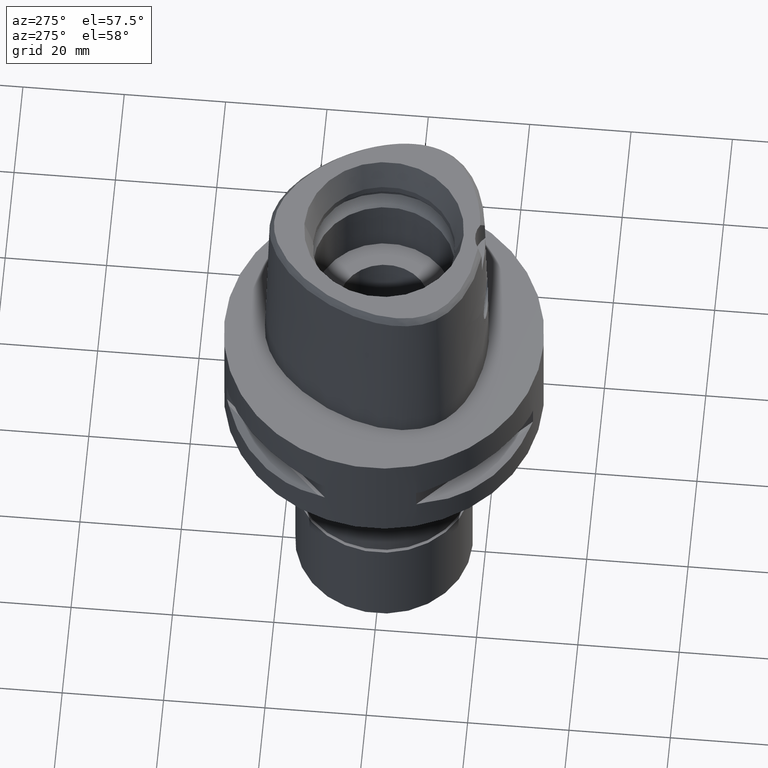
[diagram: clean part render]
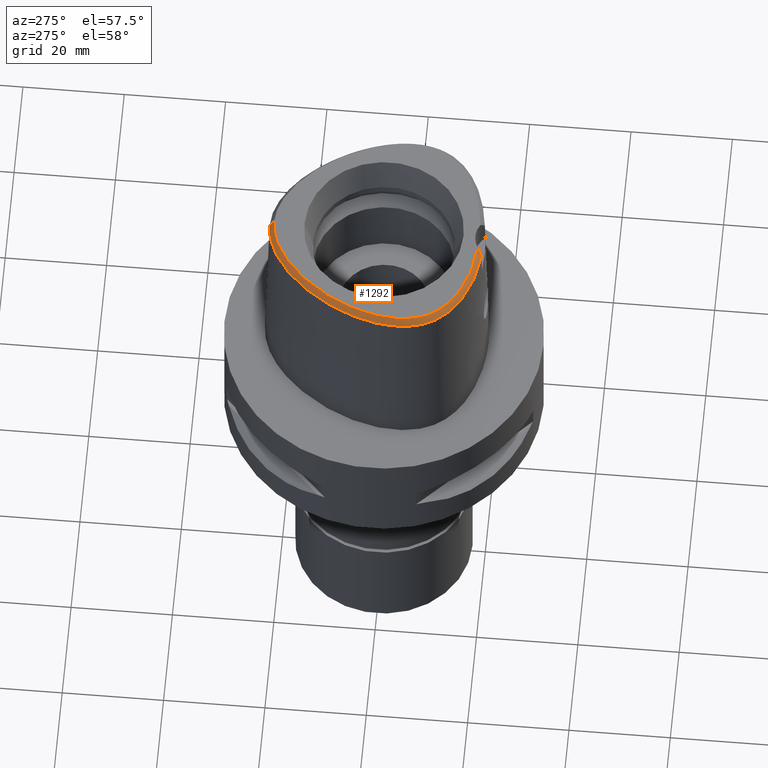
[diagram: same view with one face highlighted and labeled with its STEP entity id]
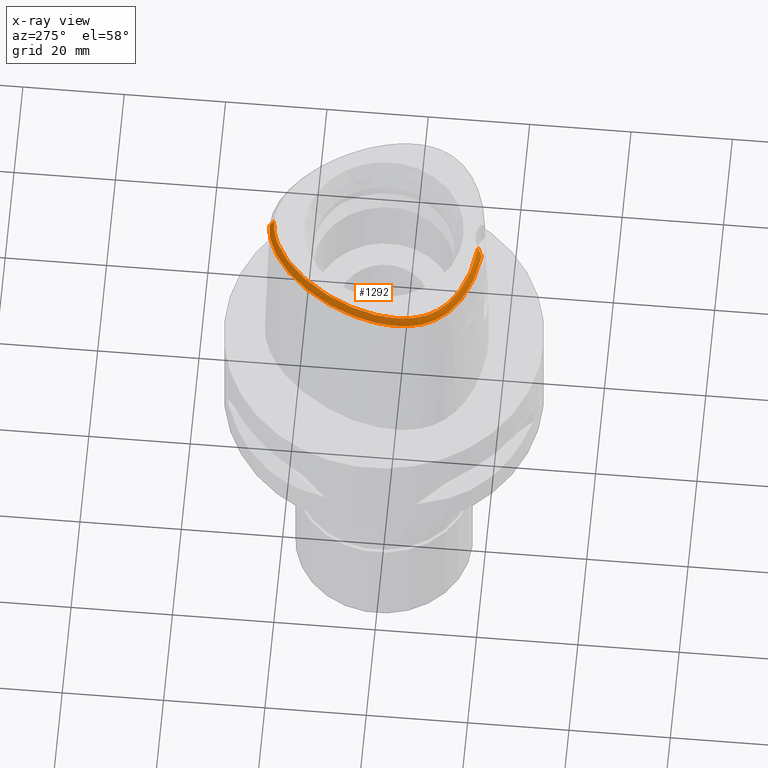
[diagram: x-ray of the same camera — body ghosted, the highlighted face saturated]
A machine part, auxiliary view. The second image highlights one B-rep face of the part: STEP entity #1292.
The next image is the same camera in x-ray: the body ghosted, the highlighted face saturated — about 0% of this face is hidden behind the body in this view.
In plain terms, the highlighted face is a freeform B-spline surface patch.
Its self-contained STEP definition (entity closure, byte-faithful):
#9 = CARTESIAN_POINT ( 'NONE',  ( -17.12168326043000022, -13.41299945634999879, 37.55531979366000428 ) ) ;
#35 = CARTESIAN_POINT ( 'NONE',  ( -17.36705065809000104, -13.66070393918000114, 36.96649716092999682 ) ) ;
#41 = CARTESIAN_POINT ( 'NONE',  ( 0.6285066589171000029, 22.28202648483999937, 36.96649691178999575 ) ) ;
#57 = CARTESIAN_POINT ( 'NONE',  ( -9.104167737895000556, -18.23657740963999885, 36.96649986384999664 ) ) ;
#65 = CARTESIAN_POINT ( 'NONE',  ( -2.001249429949000014, 21.41892593386999977, 38.14414241975999431 ) ) ;
#72 = CARTESIAN_POINT ( 'NONE',  ( -15.71788912669472360, -14.29843101566251917, 37.99999999999823075 ) ) ;
#83 = CARTESIAN_POINT ( 'NONE',  ( -16.76456539924999944, -14.22401579277000039, 36.96649709620000124 ) ) ;
#105 = CARTESIAN_POINT ( 'NONE',  ( -7.826704937448998756, -18.94325677890000037, 36.37767756388999629 ) ) ;
#111 = CARTESIAN_POINT ( 'NONE',  ( -0.7100927885175000176, 22.63257528171000033, 36.37767437893000277 ) ) ;
#135 = CARTESIAN_POINT ( 'NONE',  ( -0.6498990081534760099, 21.67378274708464403, 37.99999999999899103 ) ) ;
#138 = CARTESIAN_POINT ( 'NONE',  ( -4.348308996616999877, 21.11264479553999962, 37.55531981098000216 ) ) ;
#162 = CARTESIAN_POINT ( 'NONE',  ( -12.37759636067999836, 14.83436080763999954, 38.14414234139000826 ) ) ;
#171 = CARTESIAN_POINT ( 'NONE',  ( -4.467522189395300991, -19.48130287051044718, 36.52186244848012109 ) ) ;
#183 = CARTESIAN_POINT ( 'NONE',  ( -16.32393967392999912, 10.04394117300000033, 37.55531982341000230 ) ) ;
#204 = CARTESIAN_POINT ( 'NONE',  ( -17.73295717902000135, 8.971550314017999739, 36.37767500210999572 ) ) ;
#223 = CARTESIAN_POINT ( 'NONE',  ( -18.24302769441958816, 5.671232572958190943, 37.99999999999809575 ) ) ;
#230 = CARTESIAN_POINT ( 'NONE',  ( -15.17585722513999968, 11.20994039125999997, 38.14414232997000198 ) ) ;
#248 = CARTESIAN_POINT ( 'NONE',  ( -20.38301517462688039, -3.278344853327561648, 38.00000000000441247 ) ) ;
#254 = CARTESIAN_POINT ( 'NONE',  ( -17.52723911976999815, 7.062060699552000109, 38.14414232741000177 ) ) ;
#264 = VECTOR ( 'NONE', #865, 1000.000000000000227 ) ;
#278 = CARTESIAN_POINT ( 'NONE',  ( -21.09615816774999786, -7.195222913562999700, 36.37767443528999678 ) ) ;
#301 = CARTESIAN_POINT ( 'NONE',  ( -1.323674540694366408, 21.61098849315788684, 37.99999999999803890 ) ) ;
#307 = CARTESIAN_POINT ( 'NONE',  ( -20.19426589185999887, -6.171597163288000232, 38.14414237791999795 ) ) ;
#335 = CARTESIAN_POINT ( 'NONE',  ( -19.12867740745999967, 6.042761177815999751, 36.37767494752999653 ) ) ;
#347 = CARTESIAN_POINT ( 'NONE',  ( -7.599370508970923588, -18.01010694911817112, 38.00000000000024869 ) ) ;
#356 = B_SPLINE_CURVE_WITH_KNOTS ( 'NONE', 3,
 ( #4326, #4735, #4301, #3579 ),
 .UNSPECIFIED., .F., .F.,
 ( 4, 4 ),
 ( 0.0000000000000000000, 1.000000000000000000 ),
 .UNSPECIFIED. ) ;
#361 = CARTESIAN_POINT ( 'NONE',  ( -18.15657829243999899, 7.362013155635000139, 36.96649787063000048 ) ) ;
#385 = CARTESIAN_POINT ( 'NONE',  ( -14.53030921668000097, -15.86658569306000111, 36.96649752983000070 ) ) ;
#389 = ORIENTED_EDGE ( 'NONE', *, *, #2912, .F. ) ;
#391 = CARTESIAN_POINT ( 'NONE',  ( 0.4011141224545000106, 21.94492353493000181, 37.55531981677999909 ) ) ;
#393 = CARTESIAN_POINT ( 'NONE',  ( -2.127561604687999708, -19.78203156840999810, 36.37767550692999663 ) ) ;
#408 = CARTESIAN_POINT ( 'NONE',  ( -11.41806047328999973, -17.05144609908999698, 37.55531974900999614 ) ) ;
#431 = CARTESIAN_POINT ( 'NONE',  ( -19.52639223870999885, -9.976960348653999944, 37.55531986887999807 ) ) ;
#437 = CARTESIAN_POINT ( 'NONE',  ( -1.313063766213999894, 21.52629636675000313, 38.14414247019999493 ) ) ;
#444 = CARTESIAN_POINT ( 'NONE',  ( -13.33457781970489364, -15.85148397417497002, 37.99999999999999289 ) ) ;
#456 = CARTESIAN_POINT ( 'NONE',  ( -18.60309760926000067, -10.99135794304999969, 38.14414240117000077 ) ) ;
#462 = CARTESIAN_POINT ( 'NONE',  ( -2.799883994968999978, 21.60095730881999998, 37.55531997757999818 ) ) ;
#474 = CARTESIAN_POINT ( 'NONE',  ( -3.637738201363999835, -19.56971413236999879, 36.52186244848000030 ) ) ;
#482 = CARTESIAN_POINT ( 'NONE',  ( -7.579172012002000081, -17.92719727224000081, 38.14414215668000452 ) ) ;
#487 = CARTESIAN_POINT ( 'NONE',  ( 0.6478332438977999486, 22.62992612304000062, 36.37767413712000319 ) ) ;
#504 = CARTESIAN_POINT ( 'NONE',  ( -19.54919922642262264, -9.228169790568095721, 38.00000000000391509 ) ) ;
#506 = CARTESIAN_POINT ( 'NONE',  ( -13.15667980733999975, 15.53197356767000059, 36.37767548497999570 ) ) ;
#517 = CARTESIAN_POINT ( 'NONE',  ( -10.15538788053072494, 18.47129535094165220, 36.52186244848012109 ) ) ;
#530 = CARTESIAN_POINT ( 'NONE',  ( -10.43197531335999884, 16.80339904030999776, 38.14414206486999603 ) ) ;
#543 = EDGE_CURVE ( 'NONE', #1420, #4438, #356, .T. ) ;
#558 = CARTESIAN_POINT ( 'NONE',  ( -5.023312973316000019, 20.45657428193000271, 38.14414237455999768 ) ) ;
#577 = CARTESIAN_POINT ( 'NONE',  ( -17.11849911540000235, 8.642188748247999541, 37.55531992357000348 ) ) ;
#601 = CARTESIAN_POINT ( 'NONE',  ( -5.165910260893999961, 20.77471781885000013, 37.55531995359000064 ) ) ;
#620 = CARTESIAN_POINT ( 'NONE',  ( -17.45119705493901563, -12.68365517585368885, 38.00000000000212452 ) ) ;
#627 = CARTESIAN_POINT ( 'NONE',  ( -20.29776014918000016, -3.282181280219000463, 38.14414242144999889 ) ) ;
#643 = CARTESIAN_POINT ( 'NONE',  ( -19.98419490691645350, -7.809898894995782825, 38.00000000000395062 ) ) ;
#647 = CARTESIAN_POINT ( 'NONE',  ( -20.54140319290000249, 0.3465717870460999772, 36.96649943636999325 ) ) ;
#667 = CARTESIAN_POINT ( 'NONE',  ( -19.26324493738313848, 2.868570891456585947, 38.00000000000154898 ) ) ;
#674 = CARTESIAN_POINT ( 'NONE',  ( -20.36772299776000139, -8.722504308652998972, 36.96649720203999578 ) ) ;
#705 = CARTESIAN_POINT ( 'NONE',  ( -19.46926117583999627, -9.198251200868000410, 38.14414237790000328 ) ) ;
#717 = CARTESIAN_POINT ( 'NONE',  ( -4.706994425064742416, -18.56721852572422193, 38.00000000000304112 ) ) ;
#730 = CARTESIAN_POINT ( 'NONE',  ( -19.69895886608000168, 4.584875048484000182, 36.37767400741000046 ) ) ;
#753 = CARTESIAN_POINT ( 'NONE',  ( -13.79185788200999951, -16.69617459229000289, 36.37767455328999233 ) ) ;
#761 = CARTESIAN_POINT ( 'NONE',  ( -4.793576134601000405, -19.17289969507999814, 36.96649723816000233 ) ) ;
#778 = CARTESIAN_POINT ( 'NONE',  ( -12.63344369875999895, -16.89394803805000222, 36.96649710122000698 ) ) ;
#800 = CARTESIAN_POINT ( 'NONE',  ( -19.10630146425999598, -12.13623546095000094, 36.37767433284000163 ) ) ;
#806 = CARTESIAN_POINT ( 'NONE',  ( -0.02689001808832000226, 22.30527778583000043, 36.96649742347999990 ) ) ;
#826 = CARTESIAN_POINT ( 'NONE',  ( -18.66356249272000056, -12.73367752108999973, 36.37767522154000233 ) ) ;
#850 = CARTESIAN_POINT ( 'NONE',  ( -18.39007717719000112, -12.51739712536000226, 36.96649760262999962 ) ) ;
#865 = DIRECTION ( 'NONE',  ( -1.159487924807015001E-11, -0.5092834681090075977, 0.8605988316927122295 ) ) ;
#881 = CARTESIAN_POINT ( 'NONE',  ( -7.993852759320000168, 19.60417434497999878, 36.96649724446999130 ) ) ;
#891 = CARTESIAN_POINT ( 'NONE',  ( -19.88562090098071522, 4.345879983792017676, 36.52186244848012109 ) ) ;
#902 = CARTESIAN_POINT ( 'NONE',  ( -2.017025177696809113, 21.50280829368117352, 37.99999999999862155 ) ) ;
#904 = CARTESIAN_POINT ( 'NONE',  ( -7.247140764226999821, 20.48205174355999958, 36.37767462256000073 ) ) ;
#925 = CARTESIAN_POINT ( 'NONE',  ( -10.13646839841000080, 18.44572700129999632, 36.37767613956999924 ) ) ;
#948 = CARTESIAN_POINT ( 'NONE',  ( -11.65292860978999911, 16.11242325443000212, 37.55532085549000243 ) ) ;
#965 = CARTESIAN_POINT ( 'NONE',  ( -3.665169263124999688, 21.71869039598999862, 36.96649750639999610 ) ) ;
#990 = CARTESIAN_POINT ( 'NONE',  ( -20.19983938909999921, 0.2768833584918999891, 37.55532077270999736 ) ) ;
#998 = ORIENTED_EDGE ( 'NONE', *, *, #2477, .T. ) ;
#1010 = CARTESIAN_POINT ( 'NONE',  ( -19.94188961899586232, 0.2242544969876929806, 38.00000000000542855 ) ) ;
#1017 = CARTESIAN_POINT ( 'NONE',  ( -21.34256194262000150, -3.235165803118000394, 36.37767458395999398 ) ) ;
#1035 = CARTESIAN_POINT ( 'NONE',  ( -9.524337278001434370, 17.70558492631743519, 37.99999999999981526 ) ) ;
#1039 = CARTESIAN_POINT ( 'NONE',  ( -20.62672423625999940, -5.295503090209000341, 37.55532008928000209 ) ) ;
#1047 = CARTESIAN_POINT ( 'NONE',  ( -4.744247513305999142, -18.82782199693000180, 37.55531982690000348 ) ) ;
#1058 = CARTESIAN_POINT ( 'NONE',  ( -14.34402387966132508, 12.54761970512795166, 37.99999999999757705 ) ) ;
#1063 = CARTESIAN_POINT ( 'NONE',  ( -20.12235595958999923, -9.442686419491998606, 36.96649750870000162 ) ) ;
#1072 = CARTESIAN_POINT ( 'NONE',  ( -2.063370860241000138, -18.73864785536000355, 38.14414233944000188 ) ) ;
#1093 = CARTESIAN_POINT ( 'NONE',  ( -20.91780201012000262, -8.036095849080000519, 36.37767449006999954 ) ) ;
#1103 = CARTESIAN_POINT ( 'NONE',  ( -2.631937853039000075, -18.70029309016999974, 38.14414233019000733 ) ) ;
#1112 = ORIENTED_EDGE ( 'NONE', *, *, #3185, .F. ) ;
#1115 = CARTESIAN_POINT ( 'NONE',  ( -15.88005625124000098, -14.50586071487999895, 37.55531985699000330 ) ) ;
#1122 = CARTESIAN_POINT ( 'NONE',  ( -2.267967529513000180, -18.72605724224999690, 38.14414233474000326 ) ) ;
#1139 = CARTESIAN_POINT ( 'NONE',  ( -14.71279143475000062, -16.16364244389999882, 36.37767510726999376 ) ) ;
#1166 = CARTESIAN_POINT ( 'NONE',  ( -11.55067612095000129, -17.37384516099000109, 36.96649705715000067 ) ) ;
#1172 = CARTESIAN_POINT ( 'NONE',  ( -0.02537381127507000109, 21.60796399214999752, 38.14414238978000782 ) ) ;
#1192 = CARTESIAN_POINT ( 'NONE',  ( -16.09478960761000010, -14.78052844207000049, 36.96649730809999568 ) ) ;
#1197 = CARTESIAN_POINT ( 'NONE',  ( -2.194581488130000313, 22.44690568651000007, 36.37767460290000088 ) ) ;
#1207 = CARTESIAN_POINT ( 'NONE',  ( -21.14970188363574621, -6.717195958888013685, 36.52186244848012109 ) ) ;
#1213 = CARTESIAN_POINT ( 'NONE',  ( -20.16324191052000003, -10.26106408566999839, 36.37767480263000408 ) ) ;
#1240 = CARTESIAN_POINT ( 'NONE',  ( -6.174767804685999728, 20.67582251198999899, 36.96649762095000114 ) ) ;
#1265 = CARTESIAN_POINT ( 'NONE',  ( -15.24692477332568252, 11.25717358966043058, 38.00000000000530065 ) ) ;
#1267 = CARTESIAN_POINT ( 'NONE',  ( -13.33810351842999964, 13.70890362495999959, 38.14414246353999971 ) ) ;
#1287 = CARTESIAN_POINT ( 'NONE',  ( -9.151232397083999714, 19.21741493213999874, 36.37767409449999434 ) ) ;
#1292 = ADVANCED_FACE ( 'NONE', ( #2263 ), #1732, .F. ) ;
#1309 = CARTESIAN_POINT ( 'NONE',  ( -13.87939037361999972, 14.14828851248000063, 36.96649689462000055 ) ) ;
#1332 = CARTESIAN_POINT ( 'NONE',  ( -14.27527682814000087, 12.49706793529999871, 38.14414235490000493 ) ) ;
#1350 = CARTESIAN_POINT ( 'NONE',  ( -20.91392909690999957, -2.117451904786999961, 36.96649693957999716 ) ) ;
#1368 = CARTESIAN_POINT ( 'NONE',  ( -3.481017203588621101, 21.13509756881591528, 37.99999999999548805 ) ) ;
#1376 = CARTESIAN_POINT ( 'NONE',  ( -20.18061465521000031, 3.152958034858999614, 36.37767668140999433 ) ) ;
#1399 = CARTESIAN_POINT ( 'NONE',  ( -19.64434054692845777, 1.520253387635396969, 37.99999999999978684 ) ) ;
#1406 = CARTESIAN_POINT ( 'NONE',  ( -20.24009707112999834, -7.871899590887999842, 37.55531978321999986 ) ) ;
#1420 = VERTEX_POINT ( 'NONE', #3695 ) ;
#1421 = CARTESIAN_POINT ( 'NONE',  ( -20.15090095364999101, -7.024227649787240679, 38.00000000000529354 ) ) ;
#1425 = CARTESIAN_POINT ( 'NONE',  ( -19.89932763247000125, 1.585731761839000109, 37.55532097821000548 ) ) ;
#1453 = CARTESIAN_POINT ( 'NONE',  ( -20.22005478263999834, -2.185736901317000047, 38.14414245727999742 ) ) ;
#1481 = CARTESIAN_POINT ( 'NONE',  ( -14.95430012278999854, -14.75606250220999982, 38.14414233305000579 ) ) ;
#1503 = CARTESIAN_POINT ( 'NONE',  ( -17.61241805573999741, -13.90840842200000083, 36.37767452819999647 ) ) ;
#1529 = CARTESIAN_POINT ( 'NONE',  ( -14.16534478053999990, -15.27247219138999945, 38.14414237495000037 ) ) ;
#1535 = CARTESIAN_POINT ( 'NONE',  ( 0.4140611551187000083, 22.29319307367999770, 36.96649721464999772 ) ) ;
#1544 = CARTESIAN_POINT ( 'NONE',  ( -3.522896839654035439, -18.70811514173308154, 38.00000000000004974 ) ) ;
#1558 = CARTESIAN_POINT ( 'NONE',  ( -15.55057784370999840, -15.61535254804999973, 36.37767557885000258 ) ) ;
#1565 = CARTESIAN_POINT ( 'NONE',  ( -2.065693449341999610, 21.76158585141000046, 37.55531981413999887 ) ) ;
#1575 = CARTESIAN_POINT ( 'NONE',  ( -4.757642277158684152, 21.67478330407032772, 36.52186244848012109 ) ) ;
#1580 = CARTESIAN_POINT ( 'NONE',  ( -19.19941716501999807, -11.35291427954999932, 36.96649734181999492 ) ) ;
#1589 = LINE ( 'NONE', #4601, #264 ) ;
#1593 = CARTESIAN_POINT ( 'NONE',  ( -17.90324032096779661, -13.53935111955217963, 36.52186244848012109 ) ) ;
#1602 = CARTESIAN_POINT ( 'NONE',  ( -6.172244357410999527, -18.23451135869999717, 38.14414243403999905 ) ) ;
#1609 = CARTESIAN_POINT ( 'NONE',  ( -1.399753914574999758, 22.21823200414999988, 36.96649684686000370 ) ) ;
#1630 = CARTESIAN_POINT ( 'NONE',  ( -6.759433772717078348, 19.65454812512811955, 37.99999999999645439 ) ) ;
#1632 = CARTESIAN_POINT ( 'NONE',  ( -14.83694102210999866, 12.91007647059000085, 36.96649767355000193 ) ) ;
#1656 = CARTESIAN_POINT ( 'NONE',  ( -5.308507548472999993, 21.09286135576999754, 36.96649753263000093 ) ) ;
#1664 = CARTESIAN_POINT ( 'NONE',  ( -7.108589416785085824, 20.52412325828888839, 36.52186244848012109 ) ) ;
#1677 = CARTESIAN_POINT ( 'NONE',  ( -3.455333554077000269, 21.05370399836999695, 38.14414237821000597 ) ) ;
#1699 = CARTESIAN_POINT ( 'NONE',  ( -7.607994228924000346, 19.02344270759000366, 38.14414241473999567 ) ) ;
#1718 = CARTESIAN_POINT ( 'NONE',  ( -16.88647904405342359, 8.517821442302714985, 37.99999999999960210 ) ) ;
#1723 = CARTESIAN_POINT ( 'NONE',  ( -4.596586449374999717, 21.76424015926999544, 36.37767459137999992 ) ) ;
#1732 = B_SPLINE_SURFACE_WITH_KNOTS ( 'NONE', 3, 3, ( 
 ( #1913, #4206, #41, #487 ),
 ( #3765, #391, #1535, #3042 ),
 ( #1172, #3490, #806, #1982 ),
 ( #3839, #2312, #3815, #111 ),
 ( #437, #1936, #1609, #3444 ),
 ( #65, #1565, #4577, #1197 ),
 ( #2703, #462, #1959, #3471 ),
 ( #1677, #2816, #965, #3516 ),
 ( #3911, #138, #2462, #1723 ),
 ( #558, #601, #1656, #4277 ),
 ( #4618, #2793, #1240, #2005 ),
 ( #4254, #4667, #3160, #904 ),
 ( #1699, #2440, #881, #4715 ),
 ( #2769, #4647, #2413, #1287 ),
 ( #2752, #2383, #4302, #925 ),
 ( #530, #2060, #3181, #3607 ),
 ( #2035, #948, #3885, #4692 ),
 ( #162, #2085, #2104, #506 ),
 ( #1267, #3208, #1309, #2838 ),
 ( #1332, #3956, #1632, #4346 ),
 ( #230, #3938, #3539, #3558 ),
 ( #3979, #183, #4328, #3136 ),
 ( #2483, #577, #3580, #204 ),
 ( #254, #2858, #361, #3289 ),
 ( #2178, #3318, #4105, #335 ),
 ( #2210, #2916, #1829, #730 ),
 ( #4080, #3342, #4418, #1376 ),
 ( #2889, #1425, #4005, #4838 ),
 ( #4736, #990, #647, #2509 ),
 ( #4396, #2234, #3234, #3711 ),
 ( #1453, #4368, #1350, #2940 ),
 ( #627, #2965, #2130, #1017 ),
 ( #2533, #1774, #4474, #3632 ),
 ( #4787, #1039, #2556, #4031 ),
 ( #307, #3734, #3660, #2152 ),
 ( #1751, #4809, #4447, #278 ),
 ( #2611, #1406, #4056, #1093 ),
 ( #3261, #4760, #674, #3686 ),
 ( #705, #1806, #1063, #2582 ),
 ( #2630, #431, #4521, #1213 ),
 ( #3391, #1854, #3415, #2287 ),
 ( #456, #2356, #1580, #3758 ),
 ( #3861, #1906, #3366, #800 ),
 ( #2721, #3835, #850, #826 ),
 ( #1953, #4222, #2307, #2698 ),
 ( #3035, #9, #35, #1503 ),
 ( #4127, #3466, #83, #4865 ),
 ( #4149, #1115, #1192, #3011 ),
 ( #1481, #3081, #4588, #1558 ),
 ( #1529, #2989, #385, #1139 ),
 ( #4497, #4200, #2257, #753 ),
 ( #1883, #2653, #778, #3784 ),
 ( #4571, #408, #1166, #4547 ),
 ( #2679, #2332, #4179, #3807 ),
 ( #1931, #3438, #57, #3061 ),
 ( #482, #1976, #3486, #105 ),
 ( #1602, #3103, #2591, #1892 ),
 ( #3767, #1047, #761, #2662 ),
 ( #4063, #1785, #4159, #2217 ),
 ( #1103, #2242, #3020, #4135 ),
 ( #1122, #1836, #2265, #4530 ),
 ( #1072, #4875, #2637, #393 ) ),
 .UNSPECIFIED., .F., .F., .F.,
 ( 4, 1, 1, 1, 1, 1, 1, 1, 1, 1, 1, 1, 1, 1, 1, 1, 1, 1, 1, 1, 1, 1, 1, 1, 1, 1, 1, 1, 1, 1, 1, 1, 1, 1, 1, 1, 1, 1, 1, 1, 1, 1, 1, 1, 1, 1, 1, 1, 1, 1, 1, 1, 1, 1, 1, 1, 1, 1, 1, 4 ),
 ( 4, 4 ),
 ( -0.01585043674195000044, 0.0000000000000000000, 0.01776034072165999858, 0.03552068144391999638, 0.05328102216616999870, 0.07104136288842999303, 0.08880170361069000817, 0.1065620443330000111, 0.1243223850551999909, 0.1420827257775000019, 0.1598430664997000095, 0.1776034072219000171, 0.1953637479442000002, 0.2131240886664000078, 0.2308844293887999943, 0.2486447701109999742, 0.2664051108332999851, 0.2841654515554999927, 0.3019257922778000314, 0.3196861329999999835, 0.3374464737223000221, 0.3552068144444999742, 0.3729671551668000129, 0.3907274958890999961, 0.4084878366113000037, 0.4262481773335999868, 0.4440085180557999944, 0.4617688587780999776, 0.4795291995003000407, 0.4972895402225999684, 0.5150498809447999760, 0.5328102216671000146, 0.5505705623893999423, 0.5683309031115999499, 0.5860912438338999886, 0.6038515845561001072, 0.6216119252783999238, 0.6393722660005999314, 0.6571326067228999701, 0.6748929474452000088, 0.6926532881674000164, 0.7104136288896999440, 0.7281739696118999516, 0.7459343103341999903, 0.7636946510563999979, 0.7814549917787000366, 0.7992153325008999332, 0.8169756732231999719, 0.8347360139455000105, 0.8524963546678000492, 0.8702566953900000568, 0.8880170361122000644, 0.9057773768344999921, 0.9235377175566999997, 0.9412980582790000383, 0.9590583990012000459, 0.9768187397236000047, 0.9945790804457999013, 1.000000000000000000, 1.006922200500000031 ),
 ( -0.07453463533500999383, 1.074561999604999984 ),
 .UNSPECIFIED. ) ;
#1744 = CARTESIAN_POINT ( 'NONE',  ( -18.79649882724726240, 4.256255933890856546, 37.99999999999823075 ) ) ;
#1751 = CARTESIAN_POINT ( 'NONE',  ( -20.06691554457000137, -7.009034846215000059, 38.14414243465999732 ) ) ;
#1770 = CARTESIAN_POINT ( 'NONE',  ( -12.44116897271730160, 14.89128547409860381, 38.00000000000058265 ) ) ;
#1774 = CARTESIAN_POINT ( 'NONE',  ( -20.66387475710999766, -4.313874817204000678, 37.55531986402999678 ) ) ;
#1785 = CARTESIAN_POINT ( 'NONE',  ( -3.550572152811000137, -18.96985406917999839, 37.55532005999000233 ) ) ;
#1800 = CARTESIAN_POINT ( 'NONE',  ( -0.2181979014508467485, 21.68728795389507269, 37.99999999999897682 ) ) ;
#1806 = CARTESIAN_POINT ( 'NONE',  ( -19.79580856772000175, -9.320468810179999508, 37.55531994330000600 ) ) ;
#1829 = CARTESIAN_POINT ( 'NONE',  ( -19.37141121596999938, 4.465602821311000170, 36.96649682916000046 ) ) ;
#1836 = CARTESIAN_POINT ( 'NONE',  ( -2.291499210020000010, -19.07372046665999932, 37.55532007644000458 ) ) ;
#1854 = CARTESIAN_POINT ( 'NONE',  ( -19.22856478910999911, -10.59168861018000030, 37.55531973990999717 ) ) ;
#1883 = CARTESIAN_POINT ( 'NONE',  ( -12.33476910286000106, -16.26392943873999997, 38.14414243471999555 ) ) ;
#1892 = CARTESIAN_POINT ( 'NONE',  ( -6.369940319429000297, -19.26142080469000106, 36.37767444210999912 ) ) ;
#1906 = CARTESIAN_POINT ( 'NONE',  ( -18.53369790096999736, -11.73821204383999905, 37.55531974011999807 ) ) ;
#1913 = CARTESIAN_POINT ( 'NONE',  ( 0.5898534889557000005, 21.58622720843999687, 38.14414246114999685 ) ) ;
#1931 = CARTESIAN_POINT ( 'NONE',  ( -8.905818279922998570, -17.56819357658000058, 38.14414204943000186 ) ) ;
#1936 = CARTESIAN_POINT ( 'NONE',  ( -1.356408840395000093, 21.87226418544999973, 37.55531965852999576 ) ) ;
#1941 = CARTESIAN_POINT ( 'NONE',  ( -14.21001600787567654, -15.34519100086254539, 38.00000000000127187 ) ) ;
#1953 = CARTESIAN_POINT ( 'NONE',  ( -17.38759914151000174, -12.62673121937000076, 38.14414241344999823 ) ) ;
#1959 = CARTESIAN_POINT ( 'NONE',  ( -2.884875458599999831, 21.93910018776000115, 36.96649758835999933 ) ) ;
#1967 = CARTESIAN_POINT ( 'NONE',  ( -20.67704215115637822, -8.734985316449225934, 36.52186244848012109 ) ) ;
#1976 = CARTESIAN_POINT ( 'NONE',  ( -7.661682987150999935, -18.26588377446000067, 37.55532062574999941 ) ) ;
#1982 = CARTESIAN_POINT ( 'NONE',  ( -0.02764812149493999990, 22.65393468268000277, 36.37767494033000304 ) ) ;
#2005 = CARTESIAN_POINT ( 'NONE',  ( -6.334991103811000279, 20.98545549194999893, 36.37767525030999849 ) ) ;
#2035 = CARTESIAN_POINT ( 'NONE',  ( -11.40493232464999984, 15.86744273810999850, 38.14414208221000280 ) ) ;
#2047 = CARTESIAN_POINT ( 'NONE',  ( -19.55745547455789080, -11.29150218116565085, 36.52186244848012109 ) ) ;
#2060 = CARTESIAN_POINT ( 'NONE',  ( -10.66747145632000127, 17.06042552542999857, 37.55532090900000242 ) ) ;
#2085 = CARTESIAN_POINT ( 'NONE',  ( -12.63729084290000060, 15.06689839430999989, 37.55532005591999933 ) ) ;
#2104 = CARTESIAN_POINT ( 'NONE',  ( -12.89698532511999929, 15.29943598098999935, 36.96649777045000462 ) ) ;
#2126 = CARTESIAN_POINT ( 'NONE',  ( -18.99520880204390849, -10.46968343926009837, 38.00000000000499512 ) ) ;
#2130 = CARTESIAN_POINT ( 'NONE',  ( -20.99429467813999750, -3.250837628818000091, 36.96649719644999976 ) ) ;
#2135 = B_SPLINE_CURVE_WITH_KNOTS ( 'NONE', 3,
 ( #4096, #3430, #1544, #717, #3027, #347, #3050, #2224, #3455, #2319, #444, #1941, #3824, #72, #3282, #4805, #620, #2851, #3597, #4361, #2126, #3627, #504, #4389, #643, #1421, #2549, #4439, #4414, #248, #4049, #2934, #1010, #1399, #667, #1744, #223, #3256, #1718, #3652, #1265, #1058, #2172, #1770, #4781, #2528, #1035, #2574, #3228, #1630, #4026, #2148, #3680, #1368, #4645, #902, #301, #135, #1800, #2911 ),
 .UNSPECIFIED., .F., .F.,
 ( 4, 1, 1, 1, 1, 1, 1, 1, 1, 1, 1, 1, 1, 1, 1, 1, 1, 1, 1, 1, 1, 1, 1, 1, 1, 1, 1, 1, 1, 1, 1, 1, 1, 1, 1, 1, 1, 1, 1, 1, 1, 1, 1, 1, 1, 1, 1, 1, 1, 1, 1, 1, 1, 1, 1, 1, 1, 4 ),
 ( 0.0000000000000000000, 0.005420919554200098744, 0.02318126027639999531, 0.04094160099879995407, 0.05870194172099996166, 0.07646228244330000035, 0.09422262316550000794, 0.1119829638877999356, 0.1297433046099999432, 0.1475036453321999508, 0.1652639860544999895, 0.1830243267768000281, 0.2007846674991000668, 0.2185450082212999634, 0.2363053489436000021, 0.2540656896658000097, 0.2718260303881000484, 0.2895863711103000560, 0.3073467118325999836, 0.3251070525547999912, 0.3428673932771000299, 0.3606277339994000686, 0.3783880747216000762, 0.3961484154438998928, 0.4139087561661000114, 0.4316690968884000501, 0.4494294376106000577, 0.4671897783328999854, 0.4849501190552000240, 0.5027104597774000316, 0.5204708004996999593, 0.5382311412219000779, 0.5559914819442000056, 0.5737518226664000132, 0.5915121633886999408, 0.6092725041108999484, 0.6270328448331999871, 0.6447931855555000258, 0.6625535262777000334, 0.6803138669999999610, 0.6980742077221999686, 0.7158345484445000073, 0.7335948891667000149, 0.7513552298890000536, 0.7691155706112000612, 0.7868759113336000199, 0.8046362520558000275, 0.8223965927780999552, 0.8401569335002999628, 0.8579172742224999704, 0.8756776149448000091, 0.8934379556670000166, 0.9111982963893099363, 0.9289586371115700070, 0.9467189778338299666, 0.9644793185560800453, 0.9822396592783400049, 1.000000000000000000 ),
 .UNSPECIFIED. ) ;
#2148 = CARTESIAN_POINT ( 'NONE',  ( -5.058220461389208111, 20.53445508814465370, 38.00000000000069633 ) ) ;
#2152 = CARTESIAN_POINT ( 'NONE',  ( -21.23251000139000055, -6.298123142350000592, 36.37767507380999632 ) ) ;
#2172 = CARTESIAN_POINT ( 'NONE',  ( -13.40435640711516641, 13.76268382997355744, 37.99999999999898392 ) ) ;
#2178 = CARTESIAN_POINT ( 'NONE',  ( -18.16433836802000101, 5.638222529344000478, 38.14414238914000066 ) ) ;
#2210 = CARTESIAN_POINT ( 'NONE',  ( -18.71631591575000186, 4.227058366965000147, 38.14414247266999780 ) ) ;
#2217 = CARTESIAN_POINT ( 'NONE',  ( -3.623864602183999750, -19.66301649085999870, 36.37767549981999338 ) ) ;
#2224 = CARTESIAN_POINT ( 'NONE',  ( -10.17136073855295564, -17.24644253470227895, 38.00000000000071054 ) ) ;
#2228 = CARTESIAN_POINT ( 'NONE',  ( -1.479169189994000259E-11, 22.56201468012000078, 36.52186680743999858 ) ) ;
#2234 = CARTESIAN_POINT ( 'NONE',  ( -20.42043272041999913, -0.9702937578783999983, 37.55531995756000185 ) ) ;
#2242 = CARTESIAN_POINT ( 'NONE',  ( -2.659279472648000020, -19.04768675493999908, 37.55532009047000486 ) ) ;
#2257 = CARTESIAN_POINT ( 'NONE',  ( -13.62588819536999907, -16.38959433928000209, 36.96649717692000081 ) ) ;
#2263 = FACE_OUTER_BOUND ( 'NONE', #4783, .T. ) ;
#2265 = CARTESIAN_POINT ( 'NONE',  ( -2.315030890527999929, -19.42138369107000173, 36.96649781813999880 ) ) ;
#2287 = CARTESIAN_POINT ( 'NONE',  ( -19.84656075436999956, -10.91479454079000000, 36.37767433207000067 ) ) ;
#2307 = CARTESIAN_POINT ( 'NONE',  ( -17.90719481859999718, -13.09180059220000025, 36.96649725379999296 ) ) ;
#2312 = CARTESIAN_POINT ( 'NONE',  ( -0.6663981528253999365, 21.93658825037999804, 37.55531975274999468 ) ) ;
#2319 = CARTESIAN_POINT ( 'NONE',  ( -12.37132652997249416, -16.34104299087883660, 37.99999999999411671 ) ) ;
#2324 = CARTESIAN_POINT ( 'NONE',  ( -0.7901461696978708815, 22.56201478746404376, 36.52186244848012109 ) ) ;
#2332 = CARTESIAN_POINT ( 'NONE',  ( -10.25887531424999999, -17.49473641550000025, 37.55532052373000340 ) ) ;
#2356 = CARTESIAN_POINT ( 'NONE',  ( -18.90125738714000292, -11.17213611130000039, 37.55531987150000361 ) ) ;
#2383 = CARTESIAN_POINT ( 'NONE',  ( -9.692122717887999173, 17.90845823154000271, 37.55532023533999819 ) ) ;
#2394 = CARTESIAN_POINT ( 'NONE',  ( -16.39211280191700837, -14.95758113318893301, 36.52186244848012109 ) ) ;
#2413 = CARTESIAN_POINT ( 'NONE',  ( -8.943257880279999128, 18.93763603490999969, 36.96649688464999883 ) ) ;
#2424 = CARTESIAN_POINT ( 'NONE',  ( -14.22011356156242279, -16.41829364185901952, 36.52186244848012109 ) ) ;
#2440 = CARTESIAN_POINT ( 'NONE',  ( -7.800923494121999369, 19.31380852628999989, 37.55531982960999926 ) ) ;
#2462 = CARTESIAN_POINT ( 'NONE',  ( -4.472447722995999797, 21.43844247740999975, 36.96649720117999749 ) ) ;
#2477 = EDGE_CURVE ( 'NONE', #1420, #2982, #2135, .T. ) ;
#2483 = CARTESIAN_POINT ( 'NONE',  ( -16.81127008358999930, 8.477507965362999443, 38.14414238428999937 ) ) ;
#2509 = CARTESIAN_POINT ( 'NONE',  ( -20.88296699669000134, 0.4162602156003999965, 36.37767810002999624 ) ) ;
#2528 = CARTESIAN_POINT ( 'NONE',  ( -10.48962422759432300, 16.86631853279272164, 38.00000000000407141 ) ) ;
#2533 = CARTESIAN_POINT ( 'NONE',  ( -20.31526287523999841, -4.310621103829999967, 38.14414240360000008 ) ) ;
#2549 = CARTESIAN_POINT ( 'NONE',  ( -20.27898581532602051, -6.181921586190363804, 37.99999999999923261 ) ) ;
#2556 = CARTESIAN_POINT ( 'NONE',  ( -20.97462803578000390, -5.318056468464000375, 36.96649784798999860 ) ) ;
#2574 = CARTESIAN_POINT ( 'NONE',  ( -8.578220530114029074, 18.44656747109434036, 38.00000000000627409 ) ) ;
#2582 = CARTESIAN_POINT ( 'NONE',  ( -20.44890335147000116, -9.564904028803999481, 36.37767507409999723 ) ) ;
#2591 = CARTESIAN_POINT ( 'NONE',  ( -6.304041665422999152, -18.91911765603000006, 36.96649710608999584 ) ) ;
#2611 = CARTESIAN_POINT ( 'NONE',  ( -19.90124460163000109, -7.789801461790998971, 38.14414242978999425 ) ) ;
#2630 = CARTESIAN_POINT ( 'NONE',  ( -19.20796740280999870, -9.834908480148000010, 38.14414240200999728 ) ) ;
#2637 = CARTESIAN_POINT ( 'NONE',  ( -2.106164689872000118, -19.43423699738999844, 36.96649778443000400 ) ) ;
#2653 = CARTESIAN_POINT ( 'NONE',  ( -12.48410640080999912, -16.57893873839000065, 37.55531976796999771 ) ) ;
#2662 = CARTESIAN_POINT ( 'NONE',  ( -4.842904755895999891, -19.51797739322000069, 36.37767464942000117 ) ) ;
#2679 = CARTESIAN_POINT ( 'NONE',  ( -10.14299301922000041, -17.16595844315000008, 38.14414218974999926 ) ) ;
#2693 = CARTESIAN_POINT ( 'NONE',  ( -7.300578999876608854, -19.07170748892281154, 36.52186244848012109 ) ) ;
#2698 = CARTESIAN_POINT ( 'NONE',  ( -18.16699265715000067, -13.32433527861999956, 36.37767467398000321 ) ) ;
#2703 = CARTESIAN_POINT ( 'NONE',  ( -2.714892531338000126, 21.26281442987000148, 38.14414236678999970 ) ) ;
#2721 = CARTESIAN_POINT ( 'NONE',  ( -17.84310654612000135, -12.08483633388999934, 38.14414236480000397 ) ) ;
#2746 = VERTEX_POINT ( 'NONE', #2228 ) ;
#2752 = CARTESIAN_POINT ( 'NONE',  ( -9.469949877628998536, 17.63982384667000147, 38.14414228323000344 ) ) ;
#2769 = CARTESIAN_POINT ( 'NONE',  ( -8.527308846671999731, 18.37807824045000160, 38.14414246493999627 ) ) ;
#2793 = CARTESIAN_POINT ( 'NONE',  ( -6.014544505559999976, 20.36618953202999904, 37.55531999160000112 ) ) ;
#2816 = CARTESIAN_POINT ( 'NONE',  ( -3.560251408601000200, 21.38619719717999956, 37.55531994231000681 ) ) ;
#2831 = B_SPLINE_CURVE_WITH_KNOTS ( 'NONE', 3,
 ( #474, #171, #2693, #3924, #2424, #2394, #1593, #4240, #2047, #4585, #1967, #1207, #3546, #3148, #891, #3898, #4632, #517, #1664, #1575, #3168, #2324, #3478 ),
 .UNSPECIFIED., .F., .F.,
 ( 4, 1, 1, 1, 1, 1, 1, 1, 1, 1, 1, 1, 1, 1, 1, 1, 1, 1, 1, 1, 4 ),
 ( 0.0000000000000000000, 0.03580973941715862030, 0.1234633994701154619, 0.1672902294965413206, 0.2111170595229671931, 0.2549438895494983148, 0.2768573045626060436, 0.2987707195758189660, 0.3206841345891370265, 0.3425975496022448108, 0.3864243796287757937, 0.4302512096550964449, 0.4740780396816275388, 0.5617316997344791174, 0.6493853597874361672, 0.7370390198402878568, 0.8246926798930344082, 0.8685195099195655022, 0.9123463399460017831, 0.9561731699724380640, 1.000000000000000000 ),
 .UNSPECIFIED. ) ;
#2838 = CARTESIAN_POINT ( 'NONE',  ( -14.15003380121000021, 14.36798095623999849, 36.37767411016000096 ) ) ;
#2851 = CARTESIAN_POINT ( 'NONE',  ( -17.91005512243749465, -12.13778127739463386, 38.00000000000321876 ) ) ;
#2858 = CARTESIAN_POINT ( 'NONE',  ( -17.84190870609999635, 7.212036927593999280, 37.55532009902000112 ) ) ;
#2889 = CARTESIAN_POINT ( 'NONE',  ( -19.56168686303000115, 1.499028670186999923, 38.14414204242999773 ) ) ;
#2911 = CARTESIAN_POINT ( 'NONE',  ( -3.470663397183000013E-11, 21.68728795390000030, 38.00000000000000000 ) ) ;
#2912 = EDGE_CURVE ( 'NONE', #4438, #2746, #2831, .T. ) ;
#2916 = CARTESIAN_POINT ( 'NONE',  ( -19.04386356586000062, 4.346330594138000158, 37.55531965090999336 ) ) ;
#2934 = CARTESIAN_POINT ( 'NONE',  ( -20.16012968311339648, -1.009698174524022773, 37.99999999999813127 ) ) ;
#2940 = CARTESIAN_POINT ( 'NONE',  ( -21.26086625405000063, -2.083309406521999918, 36.37767418072999703 ) ) ;
#2965 = CARTESIAN_POINT ( 'NONE',  ( -20.64602741366000060, -3.266509454518999878, 37.55531980895000288 ) ) ;
#2982 = VERTEX_POINT ( 'NONE', #3271 ) ;
#2989 = CARTESIAN_POINT ( 'NONE',  ( -14.34782699860999955, -15.56952894222000161, 37.55531995239000054 ) ) ;
#3011 = CARTESIAN_POINT ( 'NONE',  ( -16.30952296398000101, -15.05519616926000026, 36.37767475921999960 ) ) ;
#3020 = CARTESIAN_POINT ( 'NONE',  ( -2.686621092255999876, -19.39508041971000196, 36.96649785073999794 ) ) ;
#3027 = CARTESIAN_POINT ( 'NONE',  ( -6.188376196366879967, -18.31830638231186015, 37.99999999999446487 ) ) ;
#3035 = CARTESIAN_POINT ( 'NONE',  ( -16.87631586276999940, -13.16529497352000000, 38.14414242638999752 ) ) ;
#3042 = CARTESIAN_POINT ( 'NONE',  ( 0.4270081877829000061, 22.64146261243999803, 36.37767461251999634 ) ) ;
#3050 = CARTESIAN_POINT ( 'NONE',  ( -8.930096025510181335, -17.65000298921730248, 38.00000000000591172 ) ) ;
#3061 = CARTESIAN_POINT ( 'NONE',  ( -9.203342466881998973, -18.57076932617999887, 36.37767877105999759 ) ) ;
#3081 = CARTESIAN_POINT ( 'NONE',  ( -15.15305936310000057, -15.04249251749000038, 37.55532008165000235 ) ) ;
#3103 = CARTESIAN_POINT ( 'NONE',  ( -6.238143011416999784, -18.57681450736999906, 37.55531977006999966 ) ) ;
#3136 = CARTESIAN_POINT ( 'NONE',  ( -16.92213729832000269, 10.40198738007999957, 36.37767463671000456 ) ) ;
#3148 = CARTESIAN_POINT ( 'NONE',  ( -21.07430010673073539, -0.4408303445193098580, 36.52186244848012109 ) ) ;
#3160 = CARTESIAN_POINT ( 'NONE',  ( -7.070127631083000352, 20.18170950787999729, 36.96649722104999825 ) ) ;
#3168 = CARTESIAN_POINT ( 'NONE',  ( -2.376843896519731381, 22.39422508474256546, 36.52186244848012109 ) ) ;
#3181 = CARTESIAN_POINT ( 'NONE',  ( -10.90296759926999925, 17.31745201055000294, 36.96649975313000169 ) ) ;
#3185 = EDGE_CURVE ( 'NONE', #2746, #2982, #1589, .T. ) ;
#3208 = CARTESIAN_POINT ( 'NONE',  ( -13.60874694602000012, 13.92859606871999922, 37.55531967908000013 ) ) ;
#3228 = CARTESIAN_POINT ( 'NONE',  ( -7.655222869371908878, 19.09452359226363427, 37.99999999999430855 ) ) ;
#3234 = CARTESIAN_POINT ( 'NONE',  ( -20.76511259947000099, -0.9181164582813999830, 36.96649754185000347 ) ) ;
#3256 = CARTESIAN_POINT ( 'NONE',  ( -17.60426951086933656, 7.098774535281670239, 37.99999999999364775 ) ) ;
#3261 = CARTESIAN_POINT ( 'NONE',  ( -19.70101820884000077, -8.518132064912999013, 38.14414242067000060 ) ) ;
#3271 = CARTESIAN_POINT ( 'NONE',  ( -3.470663397183000013E-11, 21.68728795390000030, 38.00000000000000000 ) ) ;
#3282 = CARTESIAN_POINT ( 'NONE',  ( -16.36032397153713092, -13.76458520345086534, 38.00000000000380851 ) ) ;
#3289 = CARTESIAN_POINT ( 'NONE',  ( -18.47124787877999808, 7.511989383676000109, 36.37767564223999983 ) ) ;
#3318 = CARTESIAN_POINT ( 'NONE',  ( -18.48578471450000293, 5.773068745500999910, 37.55531990860000491 ) ) ;
#3342 = CARTESIAN_POINT ( 'NONE',  ( -19.51469642631000312, 2.946521546737999930, 37.55532038385999982 ) ) ;
#3366 = CARTESIAN_POINT ( 'NONE',  ( -18.81999968260999978, -11.93722375238999867, 36.96649703647999985 ) ) ;
#3391 = CARTESIAN_POINT ( 'NONE',  ( -18.91956680648999978, -10.43013564486999911, 38.14414244382999897 ) ) ;
#3415 = CARTESIAN_POINT ( 'NONE',  ( -19.53756277173999933, -10.75324157548000059, 36.96649703599000247 ) ) ;
#3430 = CARTESIAN_POINT ( 'NONE',  ( -2.841965291530495819, -18.76757795572033771, 37.99999999999993605 ) ) ;
#3438 = CARTESIAN_POINT ( 'NONE',  ( -9.004993008909000451, -17.90238549310999616, 37.55532095664000281 ) ) ;
#3444 = CARTESIAN_POINT ( 'NONE',  ( -1.443098988756000178, 22.56419982285000003, 36.37767403518999743 ) ) ;
#3455 = CARTESIAN_POINT ( 'NONE',  ( -11.31790883121343327, -16.80796958613347769, 37.99999999999725020 ) ) ;
#3466 = CARTESIAN_POINT ( 'NONE',  ( -16.53425495139000034, -13.96226215365999934, 37.55531976582000198 ) ) ;
#3471 = CARTESIAN_POINT ( 'NONE',  ( -2.969866922231000128, 22.27724306670999610, 36.37767519914999781 ) ) ;
#3478 = CARTESIAN_POINT ( 'NONE',  ( -1.479169189994000259E-11, 22.56201468012000078, 36.52186680743999858 ) ) ;
#3486 = CARTESIAN_POINT ( 'NONE',  ( -7.744193962299999789, -18.60457027668000052, 36.96649909482000140 ) ) ;
#3490 = CARTESIAN_POINT ( 'NONE',  ( -0.02613191468170000115, 21.95662088898999897, 37.55531990663000386 ) ) ;
#3516 = CARTESIAN_POINT ( 'NONE',  ( -3.770087117649000064, 22.05118359480000123, 36.37767507048999960 ) ) ;
#3530 = ORIENTED_EDGE ( 'NONE', *, *, #543, .F. ) ;
#3539 = CARTESIAN_POINT ( 'NONE',  ( -15.75647990327999892, 11.59583616017999930, 36.96649785236999719 ) ) ;
#3546 = CARTESIAN_POINT ( 'NONE',  ( -21.32871527669780676, -4.105831244393788992, 36.52186244848012109 ) ) ;
#3558 = CARTESIAN_POINT ( 'NONE',  ( -16.04679124233999943, 11.78878404463999985, 36.37767561356999835 ) ) ;
#3579 = CARTESIAN_POINT ( 'NONE',  ( -3.637738201363999835, -19.56971413236999879, 36.52186244848000030 ) ) ;
#3580 = CARTESIAN_POINT ( 'NONE',  ( -17.42572814720999830, 8.806869531133001416, 36.96649746283999605 ) ) ;
#3597 = CARTESIAN_POINT ( 'NONE',  ( -18.31748213707746231, -11.58791794387516028, 37.99999999999577938 ) ) ;
#3607 = CARTESIAN_POINT ( 'NONE',  ( -11.13846374222999991, 17.57447849567000020, 36.37767859726000097 ) ) ;
#3627 = CARTESIAN_POINT ( 'NONE',  ( -19.28591707036825298, -9.869682450886646308, 37.99999999999399591 ) ) ;
#3632 = CARTESIAN_POINT ( 'NONE',  ( -21.36109852084999972, -4.320382243953000412, 36.37767478488999728 ) ) ;
#3652 = CARTESIAN_POINT ( 'NONE',  ( -16.09805956313741149, 9.908742513516635597, 38.00000000000228084 ) ) ;
#3660 = CARTESIAN_POINT ( 'NONE',  ( -20.88642863154999674, -6.255947815995999584, 36.96649750851000249 ) ) ;
#3680 = CARTESIAN_POINT ( 'NONE',  ( -4.254559144978170337, 20.86660163697418824, 37.99999999999536016 ) ) ;
#3686 = CARTESIAN_POINT ( 'NONE',  ( -20.70107539221999815, -8.824690430523000728, 36.37767459272999560 ) ) ;
#3695 = CARTESIAN_POINT ( 'NONE',  ( -2.682279906006999948, -18.78035848609999903, 38.00000000000000000 ) ) ;
#3711 = CARTESIAN_POINT ( 'NONE',  ( -21.10979247851999929, -0.8659391586843000477, 36.37767512613999799 ) ) ;
#3734 = CARTESIAN_POINT ( 'NONE',  ( -20.54034726170000269, -6.213772489642000352, 37.55531994321999889 ) ) ;
#3758 = CARTESIAN_POINT ( 'NONE',  ( -19.49757694290999765, -11.53369244780000002, 36.37767481215000487 ) ) ;
#3765 = CARTESIAN_POINT ( 'NONE',  ( 0.3881670897903000128, 21.59665399616999792, 38.14414241890999335 ) ) ;
#3767 = CARTESIAN_POINT ( 'NONE',  ( -4.694918892010999656, -18.48274429877999836, 38.14414241562999308 ) ) ;
#3784 = CARTESIAN_POINT ( 'NONE',  ( -12.78278099671000057, -17.20895733769999936, 36.37767443447000204 ) ) ;
#3807 = CARTESIAN_POINT ( 'NONE',  ( -10.49063990430999915, -18.15229236018999970, 36.37767719170000191 ) ) ;
#3815 = CARTESIAN_POINT ( 'NONE',  ( -0.6882454706714998816, 22.28458176603999874, 36.96649706584000228 ) ) ;
#3824 = CARTESIAN_POINT ( 'NONE',  ( -15.00295592773833420, -14.82617991125763623, 38.00000000000084555 ) ) ;
#3835 = CARTESIAN_POINT ( 'NONE',  ( -18.11659186165000079, -12.30111672962999947, 37.55531998370999958 ) ) ;
#3839 = CARTESIAN_POINT ( 'NONE',  ( -0.6445508349794000225, 21.58859473472000445, 38.14414243965999418 ) ) ;
#3861 = CARTESIAN_POINT ( 'NONE',  ( -18.24739611932999850, -11.53920033528000033, 38.14414244374999186 ) ) ;
#3885 = CARTESIAN_POINT ( 'NONE',  ( -11.90092489493999928, 16.35740377075000040, 36.96649962877000206 ) ) ;
#3898 = CARTESIAN_POINT ( 'NONE',  ( -17.27359245833313395, 9.972912913898531073, 36.52186244848012109 ) ) ;
#3911 = CARTESIAN_POINT ( 'NONE',  ( -4.224170270237999958, 20.78684711368000038, 38.14414242077999972 ) ) ;
#3924 = CARTESIAN_POINT ( 'NONE',  ( -10.91891098965182927, -18.03046406390886247, 36.52186244848012109 ) ) ;
#3938 = CARTESIAN_POINT ( 'NONE',  ( -15.46616856421000108, 11.40288827572000052, 37.55532009117000314 ) ) ;
#3956 = CARTESIAN_POINT ( 'NONE',  ( -14.55610892512000021, 12.70357220294000200, 37.55532001423000565 ) ) ;
#3979 = CARTESIAN_POINT ( 'NONE',  ( -16.02484086173999955, 9.864918069464000183, 38.14414241675999762 ) ) ;
#4005 = CARTESIAN_POINT ( 'NONE',  ( -20.23696840190999779, 1.672434853491000073, 36.96649991398999191 ) ) ;
#4026 = CARTESIAN_POINT ( 'NONE',  ( -5.893543501601002710, 20.13235399352001664, 38.00000000000098765 ) ) ;
#4031 = CARTESIAN_POINT ( 'NONE',  ( -21.32253183530000129, -5.340609846719000409, 36.37767560670000222 ) ) ;
#4049 = CARTESIAN_POINT ( 'NONE',  ( -20.30498420086865963, -2.177378896258015395, 38.00000000000824940 ) ) ;
#4056 = CARTESIAN_POINT ( 'NONE',  ( -20.57894954061999826, -7.953997719984000625, 36.96649713664000103 ) ) ;
#4063 = CARTESIAN_POINT ( 'NONE',  ( -3.513925928124000286, -18.62327285833999824, 38.14414234007000459 ) ) ;
#4080 = CARTESIAN_POINT ( 'NONE',  ( -19.18173731185999742, 2.843303302678000133, 38.14414223509000124 ) ) ;
#4096 = CARTESIAN_POINT ( 'NONE',  ( -2.682279906006999948, -18.78035848609999903, 38.00000000000000000 ) ) ;
#4105 = CARTESIAN_POINT ( 'NONE',  ( -18.80723106097999775, 5.907914961658000230, 36.96649742806999939 ) ) ;
#4127 = CARTESIAN_POINT ( 'NONE',  ( -16.30394450354000213, -13.70050851454000096, 38.14414243542999827 ) ) ;
#4135 = CARTESIAN_POINT ( 'NONE',  ( -2.713962711864999822, -19.74247408448999863, 36.37767561101999547 ) ) ;
#4149 = CARTESIAN_POINT ( 'NONE',  ( -15.66532289487000007, -14.23119298768999919, 38.14414240586999938 ) ) ;
#4159 = CARTESIAN_POINT ( 'NONE',  ( -3.587218377496999899, -19.31643528001999854, 36.96649777991000718 ) ) ;
#4179 = CARTESIAN_POINT ( 'NONE',  ( -10.37475760927999957, -17.82351438784999687, 36.96649885771999777 ) ) ;
#4200 = CARTESIAN_POINT ( 'NONE',  ( -13.45991850872999862, -16.08301408627999862, 37.55531980053999774 ) ) ;
#4206 = CARTESIAN_POINT ( 'NONE',  ( 0.6091800739364000572, 21.93412684663999812, 37.55531968646999275 ) ) ;
#4222 = CARTESIAN_POINT ( 'NONE',  ( -17.64739698006000168, -12.85926590579000006, 37.55531983362000403 ) ) ;
#4240 = CARTESIAN_POINT ( 'NONE',  ( -18.90964971337939815, -12.28759719904539160, 36.52186244848012109 ) ) ;
#4254 = CARTESIAN_POINT ( 'NONE',  ( -6.716101364794000439, 19.58102503651999982, 38.14414241800999861 ) ) ;
#4277 = CARTESIAN_POINT ( 'NONE',  ( -5.451104836050999936, 21.41100489269000207, 36.37767511167000123 ) ) ;
#4301 = CARTESIAN_POINT ( 'NONE',  ( -3.339321438853887880, -19.25325016372767806, 37.10705438593469552 ) ) ;
#4302 = CARTESIAN_POINT ( 'NONE',  ( -9.914295558147001586, 18.17709261642000129, 36.96649818745999738 ) ) ;
#4326 = CARTESIAN_POINT ( 'NONE',  ( -2.682279906006999948, -18.78035848609999903, 38.00000000000000000 ) ) ;
#4328 = CARTESIAN_POINT ( 'NONE',  ( -16.62303848612999957, 10.22296427654000084, 36.96649723005999988 ) ) ;
#4346 = CARTESIAN_POINT ( 'NONE',  ( -15.11777311910000066, 13.11658073823000059, 36.37767533288000266 ) ) ;
#4361 = CARTESIAN_POINT ( 'NONE',  ( -18.67608643721760231, -11.03561202290848442, 38.00000000000079581 ) ) ;
#4368 = CARTESIAN_POINT ( 'NONE',  ( -20.56699193977999940, -2.151594403052000004, 37.55531969842999729 ) ) ;
#4389 = CARTESIAN_POINT ( 'NONE',  ( -19.78262210840517810, -8.543146992552989261, 38.00000000000304823 ) ) ;
#4396 = CARTESIAN_POINT ( 'NONE',  ( -20.07575284137000082, -1.022471057475000000, 38.14414237327000734 ) ) ;
#4409 = CARTESIAN_POINT ( 'NONE',  ( -3.637738201363999835, -19.56971413236999879, 36.52186244848000030 ) ) ;
#4414 = CARTESIAN_POINT ( 'NONE',  ( -20.40060226223144113, -4.311417605381524965, 38.00000000000749623 ) ) ;
#4418 = CARTESIAN_POINT ( 'NONE',  ( -19.84765554075999816, 3.049739790799000261, 36.96649853263000551 ) ) ;
#4438 = VERTEX_POINT ( 'NONE', #4409 ) ;
#4439 = CARTESIAN_POINT ( 'NONE',  ( -20.36398648679276135, -5.278470727085624148, 37.99999999999575095 ) ) ;
#4447 = CARTESIAN_POINT ( 'NONE',  ( -20.75307729336000051, -7.133160224447000708, 36.96649710175000791 ) ) ;
#4474 = CARTESIAN_POINT ( 'NONE',  ( -21.01248663898000046, -4.317128530579000589, 36.96649732446000058 ) ) ;
#4497 = CARTESIAN_POINT ( 'NONE',  ( -13.29394882208999995, -15.77643383326999782, 38.14414242416999912 ) ) ;
#4521 = CARTESIAN_POINT ( 'NONE',  ( -19.84481707461999989, -10.11901221715999988, 36.96649733574999885 ) ) ;
#4530 = CARTESIAN_POINT ( 'NONE',  ( -2.338562571035999849, -19.76904691548000059, 36.37767555984999746 ) ) ;
#4547 = CARTESIAN_POINT ( 'NONE',  ( -11.68329176861000107, -17.69624422289999899, 36.37767436529000520 ) ) ;
#4571 = CARTESIAN_POINT ( 'NONE',  ( -11.28544482564000084, -16.72904703718999642, 38.14414244086999872 ) ) ;
#4577 = CARTESIAN_POINT ( 'NONE',  ( -2.130137468735999740, 22.10424576896000204, 36.96649720851999632 ) ) ;
#4585 = CARTESIAN_POINT ( 'NONE',  ( -20.09619618741544400, -10.23243843868383962, 36.52186244848012109 ) ) ;
#4588 = CARTESIAN_POINT ( 'NONE',  ( -15.35181860341000082, -15.32892253276999917, 36.96649783024999181 ) ) ;
#4601 = CARTESIAN_POINT ( 'NONE',  ( -1.479169189994000259E-11, 22.56201468012000078, 36.52186680743999858 ) ) ;
#4618 = CARTESIAN_POINT ( 'NONE',  ( -5.854321206435000313, 20.05655655207999999, 38.14414236224000376 ) ) ;
#4632 = CARTESIAN_POINT ( 'NONE',  ( -13.70645028111485786, 15.04851272300333243, 36.52186244848012109 ) ) ;
#4645 = CARTESIAN_POINT ( 'NONE',  ( -2.735698246183026150, 21.34559102902163374, 38.00000000000508749 ) ) ;
#4647 = CARTESIAN_POINT ( 'NONE',  ( -8.735283363476000318, 18.65785713768000065, 37.55531967478999888 ) ) ;
#4667 = CARTESIAN_POINT ( 'NONE',  ( -6.893114497939000884, 19.88136727219999855, 37.55531981953000553 ) ) ;
#4692 = CARTESIAN_POINT ( 'NONE',  ( -12.14892118008999766, 16.60238428707000224, 36.37767840205999903 ) ) ;
#4715 = CARTESIAN_POINT ( 'NONE',  ( -8.186782024518000966, 19.89454016367000122, 36.37767465932999755 ) ) ;
#4735 = CARTESIAN_POINT ( 'NONE',  ( -3.014271304830775211, -18.99139391531755550, 37.59976690310802638 ) ) ;
#4736 = CARTESIAN_POINT ( 'NONE',  ( -19.85827558531000037, 0.2071949299375999975, 38.14414210904999436 ) ) ;
#4760 = CARTESIAN_POINT ( 'NONE',  ( -20.03437060330000108, -8.620318186782998993, 37.55531981134999597 ) ) ;
#4781 = CARTESIAN_POINT ( 'NONE',  ( -11.46564124494424064, 15.92741340513216919, 38.00000000000016342 ) ) ;
#4783 = EDGE_LOOP ( 'NONE', ( #998, #1112, #389, #3530 ) ) ;
#4787 = CARTESIAN_POINT ( 'NONE',  ( -20.27882043672999757, -5.272949711954000307, 38.14414233056999848 ) ) ;
#4805 = CARTESIAN_POINT ( 'NONE',  ( -16.93638123745449420, -13.22593246127959965, 37.99999999999214140 ) ) ;
#4809 = CARTESIAN_POINT ( 'NONE',  ( -20.40999641895999872, -7.071097535330999939, 37.55531976820000040 ) ) ;
#4838 = CARTESIAN_POINT ( 'NONE',  ( -20.57460917135000145, 1.759137945142999815, 36.37767884976999966 ) ) ;
#4865 = CARTESIAN_POINT ( 'NONE',  ( -16.99487584710000121, -14.48576943189000055, 36.37767442658999784 ) ) ;
#4875 = CARTESIAN_POINT ( 'NONE',  ( -2.084767775056999728, -19.08644242637999966, 37.55532006194000161 ) ) ;